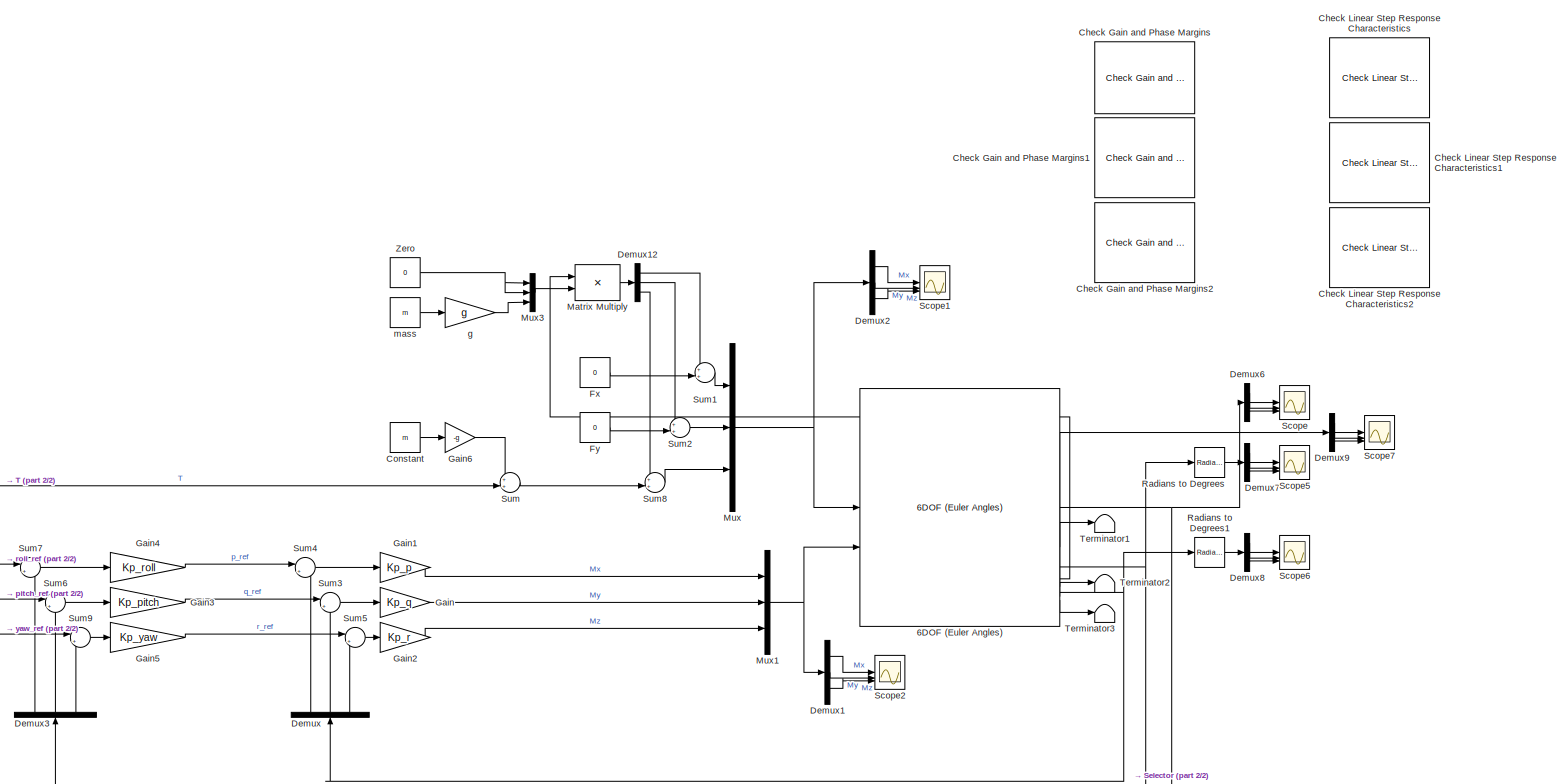
[diagram: root canvas - part 1/2, most of the canvas]
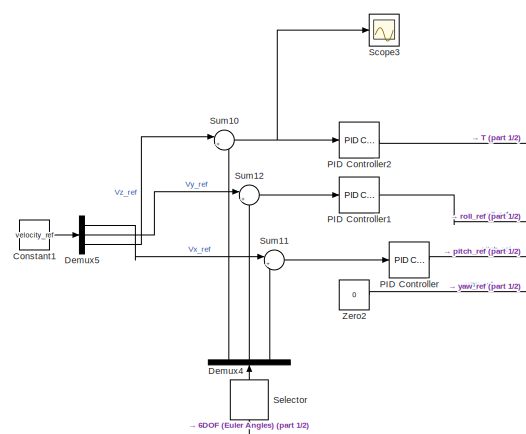
[diagram: root canvas - part 2/2, middle left region]
MODEL slx_6609ac50c49f
KIND model
CONFIG AbsTol = auto
CONFIG EnableMultiTasking = off
CONFIG FixedStep = 0.01
CONFIG MaxStep = auto
CONFIG MinStep = auto
CONFIG RelTol = 1e-3
CONFIG SampleTimeConstraint = Unconstrained
CONFIG SolverName = FixedStepAuto
CONFIG StartTime = 0.0
CONFIG StopTime = 10.0
BLOCK [Reference] 6DOF (Euler Angles)  REF=shared6dof/6DOF (Euler Angles)
  LibrarySourceBlock = aerolib6dof2/6DOF (Euler Angles)
  SourceBlock = shared6dof/6DOF (Euler Angles)
  SourceType = 6DOF EoM (Body Axis)
BLOCK [Reference] Check Gain and Phase Margins  REF=slctrlblks/Model Verification/Check Gain and Phase Margins
  InstantiateOnLoad = on
  SourceBlock = slctrlblks/Model Verification/Check Gain and Phase Margins
  SourceType = Checks_Margins
BLOCK [Reference] Check Gain and Phase Margins1  REF=slctrlblks/Model Verification/Check Gain and Phase Margins
  InstantiateOnLoad = on
  SourceBlock = slctrlblks/Model Verification/Check Gain and Phase Margins
  SourceType = Checks_Margins
BLOCK [Reference] Check Gain and Phase Margins2  REF=slctrlblks/Model Verification/Check Gain and Phase Margins
  InstantiateOnLoad = on
  SourceBlock = slctrlblks/Model Verification/Check Gain and Phase Margins
  SourceType = Checks_Margins
BLOCK [Reference] Check Linear Step Response Characteristics  REF=slctrlblks/Model Verification/Check Linear Step Response
Characteristics
  InstantiateOnLoad = on
  SourceBlock = slctrlblks/Model Verification/Check Linear Step Response\nCharacteristics
  SourceType = Checks_LinearStepResponse
BLOCK [Reference] Check Linear Step Response Characteristics1  REF=slctrlblks/Model Verification/Check Linear Step Response
Characteristics
  InstantiateOnLoad = on
  SourceBlock = slctrlblks/Model Verification/Check Linear Step Response\nCharacteristics
  SourceType = Checks_LinearStepResponse
BLOCK [Reference] Check Linear Step Response Characteristics2  REF=slctrlblks/Model Verification/Check Linear Step Response
Characteristics
  InstantiateOnLoad = on
  SourceBlock = slctrlblks/Model Verification/Check Linear Step Response\nCharacteristics
  SourceType = Checks_LinearStepResponse
BLOCK [Constant] Constant
  Value = m
BLOCK [Constant] Constant1
  Value = velocity_ref
BLOCK [Demux] Demux
  NameLocation = right
  Outputs = 3
BLOCK [Demux] Demux1
  Outputs = 3
BLOCK [Demux] Demux12
  Outputs = 3
BLOCK [Demux] Demux2
  Outputs = 3
BLOCK [Demux] Demux3
  NameLocation = right
  Outputs = 3
BLOCK [Demux] Demux4
  NameLocation = right
  Outputs = 3
BLOCK [Demux] Demux5
  Outputs = 3
BLOCK [Demux] Demux6
  Outputs = 3
BLOCK [Demux] Demux7
  Outputs = 3
BLOCK [Demux] Demux8
  Outputs = 3
BLOCK [Demux] Demux9
  Outputs = 3
BLOCK [Constant] Fx
  Value = 0
BLOCK [Constant] Fy
  Value = 0
BLOCK [Gain] Gain
  Gain = Kp_q
BLOCK [Gain] Gain1
  Gain = Kp_p
BLOCK [Gain] Gain2
  Gain = Kp_r
BLOCK [Gain] Gain3
  Gain = Kp_pitch
BLOCK [Gain] Gain4
  Gain = Kp_roll
BLOCK [Gain] Gain5
  Gain = Kp_yaw
BLOCK [Gain] Gain6
  Gain = -g
BLOCK [Product] Matrix Multiply
  Inputs = **
  Multiplication = Matrix(*)
BLOCK [Mux] Mux
  DisplayOption = bar
  Inputs = 3
BLOCK [Mux] Mux1
  DisplayOption = bar
  Inputs = 3
BLOCK [Mux] Mux3
  DisplayOption = bar
  Inputs = 3
BLOCK [Reference] PID Controller  REF=slpidlib/PID Controller
  LibrarySourceBlock = simulink/Continuous/PID Controller
  SourceBlock = slpidlib/PID Controller
  SourceType = PID 1dof
BLOCK [Reference] PID Controller1  REF=slpidlib/PID Controller
  LibrarySourceBlock = simulink/Continuous/PID Controller
  SourceBlock = slpidlib/PID Controller
  SourceType = PID 1dof
BLOCK [Reference] PID Controller2  REF=slpidlib/PID Controller
  LibrarySourceBlock = simulink/Continuous/PID Controller
  SourceBlock = slpidlib/PID Controller
  SourceType = PID 1dof
BLOCK [Reference] Radians to Degrees  REF=simulink_extras/Transformations/Radians
to Degrees
  SourceBlock = simulink_extras/Transformations/Radians\nto Degrees
  SourceType = RadiansToDegrees
BLOCK [Reference] Radians to Degrees1  REF=simulink_extras/Transformations/Radians
to Degrees
  SourceBlock = simulink_extras/Transformations/Radians\nto Degrees
  SourceType = RadiansToDegrees
BLOCK [Scope] Scope
  Floating = off
  NumInputPorts = 3
  ScopeSpecificationString = Simulink.scopes.TimeScopeBlockCfg('CurrentConfiguration', extmgr.ConfigurationSet(extmgr.Configuration('Core','General UI',true),extmgr.Configuration('Core','Source UI',true),extmgr.Configuration('Sources','WiredSimulink',true,'DataLoggingVariableName','ScopeData1'),extmgr.Configuration('Visuals','Time Domain',true,'SerializedDisplays',{struct('MinYLimReal','-0.18141','MaxYLimReal','1.55916','YLab...<+1469ch>
BLOCK [Scope] Scope1
  Floating = off
  NumInputPorts = 3
  ScopeSpecificationString = Simulink.scopes.TimeScopeBlockCfg('CurrentConfiguration', extmgr.ConfigurationSet(extmgr.Configuration('Core','General UI',true),extmgr.Configuration('Core','Source UI',true),extmgr.Configuration('Sources','WiredSimulink',true,'DataLoggingVariableName','ScopeData1'),extmgr.Configuration('Visuals','Time Domain',true,'SerializedDisplays',{struct('MinYLimReal','-6.07116','MaxYLimReal','2.45128','YLab...<+1507ch>
BLOCK [Scope] Scope2
  Floating = off
  NumInputPorts = 3
  ScopeSpecificationString = Simulink.scopes.TimeScopeBlockCfg('CurrentConfiguration', extmgr.ConfigurationSet(extmgr.Configuration('Core','General UI',true),extmgr.Configuration('Core','Source UI',true),extmgr.Configuration('Sources','WiredSimulink',true,'DataLoggingVariableName','ScopeData2'),extmgr.Configuration('Visuals','Time Domain',true,'SerializedDisplays',{struct('MinYLimReal','-10.33025','MaxYLimReal','10.33025','YL...<+1513ch>
BLOCK [Scope] Scope3
  Floating = off
  NumInputPorts = 1
  ScopeSpecificationString = Simulink.scopes.TimeScopeBlockCfg('CurrentConfiguration', extmgr.ConfigurationSet(extmgr.Configuration('Core','General UI',true),extmgr.Configuration('Core','Source UI',true),extmgr.Configuration('Sources','WiredSimulink',true,'DataLoggingVariableName','ScopeData1'),extmgr.Configuration('Visuals','Time Domain',true,'SerializedDisplays',{struct('MinYLimReal','-1.05824','MaxYLimReal','0.67314','YLab...<+1364ch>
BLOCK [Scope] Scope5
  Floating = off
  NumInputPorts = 3
  ScopeSpecificationString = Simulink.scopes.TimeScopeBlockCfg('CurrentConfiguration', extmgr.ConfigurationSet(extmgr.Configuration('Core','General UI',true),extmgr.Configuration('Core','Source UI',true),extmgr.Configuration('Sources','WiredSimulink',true,'DataLoggingVariableName','ScopeData4'),extmgr.Configuration('Visuals','Time Domain',true,'SerializedDisplays',{struct('MinYLimReal','-13.23984','MaxYLimReal','25.13779','YL...<+2778ch>
BLOCK [Scope] Scope6
  Floating = off
  NumInputPorts = 3
  ScopeSpecificationString = Simulink.scopes.TimeScopeBlockCfg('CurrentConfiguration', extmgr.ConfigurationSet(extmgr.Configuration('Core','General UI',true),extmgr.Configuration('Core','Source UI',true),extmgr.Configuration('Sources','WiredSimulink',true,'DataLoggingVariableName','ScopeData5'),extmgr.Configuration('Visuals','Time Domain',true,'SerializedDisplays',{struct('MinYLimReal','-471.2063','MaxYLimReal','471.20363','Y...<+1453ch>
BLOCK [Scope] Scope7
  Floating = off
  NumInputPorts = 3
  ScopeSpecificationString = Simulink.scopes.TimeScopeBlockCfg('CurrentConfiguration', extmgr.ConfigurationSet(extmgr.Configuration('Core','General UI',true),extmgr.Configuration('Core','Source UI',true),extmgr.Configuration('Sources','WiredSimulink',true,'DataLoggingVariableName','ScopeData6'),extmgr.Configuration('Visuals','Time Domain',true,'SerializedDisplays',{struct('MinYLimReal','-4.83707','MaxYLimReal','6.09296','YLab...<+1443ch>
BLOCK [Selector] Selector
  IndexOptions = Index vector (dialog)
  Indices = [3 2 1]
  InputPortWidth = 3
  NameLocation = right
  OutputSizes = 1
BLOCK [Sum] Sum
  Inputs = ++|
BLOCK [Sum] Sum1
  Inputs = ++|
BLOCK [Sum] Sum10
  Inputs = |+-
BLOCK [Sum] Sum11
  Inputs = |+-
BLOCK [Sum] Sum12
  Inputs = |+-
BLOCK [Sum] Sum2
  Inputs = ++|
BLOCK [Sum] Sum3
  Inputs = |+-
BLOCK [Sum] Sum4
  Inputs = |+-
BLOCK [Sum] Sum5
  Inputs = |+-
BLOCK [Sum] Sum6
  Inputs = |+-
BLOCK [Sum] Sum7
  Inputs = |+-
BLOCK [Sum] Sum8
  Inputs = ++|
BLOCK [Sum] Sum9
  Inputs = |+-
BLOCK [Terminator] Terminator1
BLOCK [Terminator] Terminator2
BLOCK [Terminator] Terminator3
BLOCK [Constant] Zero
  OutDataTypeStr = Inherit: Inherit via back propagation
  Value = 0
BLOCK [Constant] Zero2
  OutDataTypeStr = Inherit: Inherit via back propagation
  Value = 0
BLOCK [Gain] g
  Gain = g
BLOCK [Constant] mass
  Value = m
NET 6DOF (Euler Angles):1 -> Demux6:1, Selector:1
LINE 6DOF (Euler Angles):2 -> Demux9:1
NET 6DOF (Euler Angles):3 -> Demux3:1, Radians to Degrees:1
LINE 6DOF (Euler Angles):4 -> Matrix Multiply:1
LINE 6DOF (Euler Angles):5 -> Terminator1:1
NET 6DOF (Euler Angles):6 -> Demux:1, Radians to Degrees1:1
LINE 6DOF (Euler Angles):7 -> Terminator2:1
LINE 6DOF (Euler Angles):8 -> Terminator3:1
LINE Constant1:1 -> Demux5:1
LINE Constant:1 -> Gain6:1
LINE Demux12:1 -> Sum1:1
LINE Demux12:2 -> Sum2:1
LINE Demux12:3 -> Sum8:1
LINE Demux1:1 -> Scope2:1
LINE Demux1:2 -> Scope2:2
LINE Demux1:3 -> Scope2:3
LINE Demux2:1 -> Scope1:1
LINE Demux2:2 -> Scope1:2
LINE Demux2:3 -> Scope1:3
LINE Demux3:1 -> Sum7:2
LINE Demux3:2 -> Sum6:2
LINE Demux3:3 -> Sum9:2
LINE Demux4:1 -> Sum10:2
LINE Demux4:2 -> Sum12:2
LINE Demux4:3 -> Sum11:2
LINE Demux5:1 -> Sum11:1
LINE Demux5:2 -> Sum12:1
LINE Demux5:3 -> Sum10:1
LINE Demux6:1 -> Scope:1
LINE Demux6:2 -> Scope:2
LINE Demux6:3 -> Scope:3
LINE Demux7:1 -> Scope5:1
LINE Demux7:2 -> Scope5:2
LINE Demux7:3 -> Scope5:3
LINE Demux8:1 -> Scope6:1
LINE Demux8:2 -> Scope6:2
LINE Demux8:3 -> Scope6:3
LINE Demux9:1 -> Scope7:1
LINE Demux9:2 -> Scope7:2
LINE Demux9:3 -> Scope7:3
LINE Demux:1 -> Sum4:2
LINE Demux:2 -> Sum3:2
LINE Demux:3 -> Sum5:2
LINE Fx:1 -> Sum1:2
LINE Fy:1 -> Sum2:2
LINE Gain1:1 -> Mux1:1
LINE Gain2:1 -> Mux1:3
LINE Gain3:1 -> Sum3:1
LINE Gain4:1 -> Sum4:1
LINE Gain5:1 -> Sum5:1
LINE Gain6:1 -> Sum:1
LINE Gain:1 -> Mux1:2
LINE Matrix Multiply:1 -> Demux12:1
NET Mux1:1 -> 6DOF (Euler Angles):2, Demux1:1
LINE Mux3:1 -> Matrix Multiply:2
NET Mux:1 -> 6DOF (Euler Angles):1, Demux2:1
LINE PID Controller1:1 -> Sum7:1
LINE PID Controller2:1 -> Sum:2
LINE PID Controller:1 -> Sum6:1
LINE Radians to Degrees1:1 -> Demux8:1
LINE Radians to Degrees:1 -> Demux7:1
LINE Selector:1 -> Demux4:1
NET Sum10:1 -> PID Controller2:1, Scope3:1
LINE Sum11:1 -> PID Controller:1
LINE Sum12:1 -> PID Controller1:1
LINE Sum1:1 -> Mux:1
LINE Sum2:1 -> Mux:2
LINE Sum3:1 -> Gain:1
LINE Sum4:1 -> Gain1:1
LINE Sum5:1 -> Gain2:1
LINE Sum6:1 -> Gain3:1
LINE Sum7:1 -> Gain4:1
LINE Sum8:1 -> Mux:3
LINE Sum9:1 -> Gain5:1
LINE Sum:1 -> Sum8:2
LINE Zero2:1 -> Sum9:1
NET Zero:1 -> Mux3:1, Mux3:2
LINE g:1 -> Mux3:3
LINE mass:1 -> g:1
note: NET lines group one-source signal fan-out (src -> all destinations, sorted); 1:1 wires keep LINE
